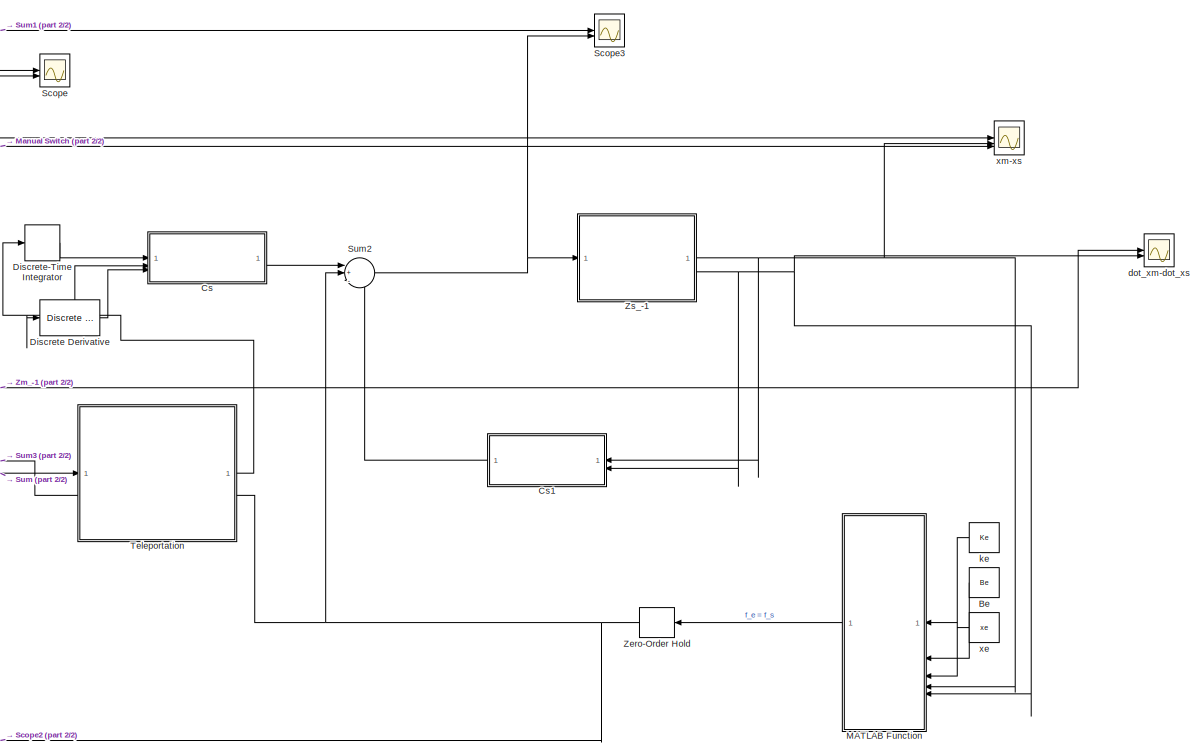
[diagram: root canvas - part 1/2, right side, full height]
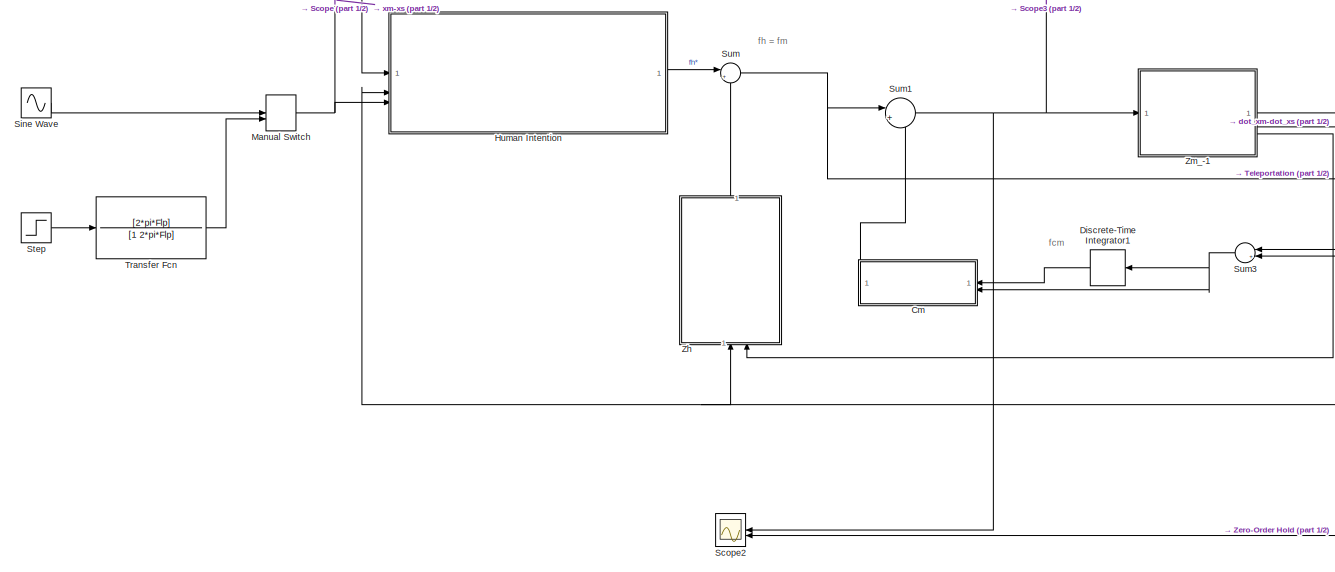
[diagram: root canvas - part 2/2, middle left region]
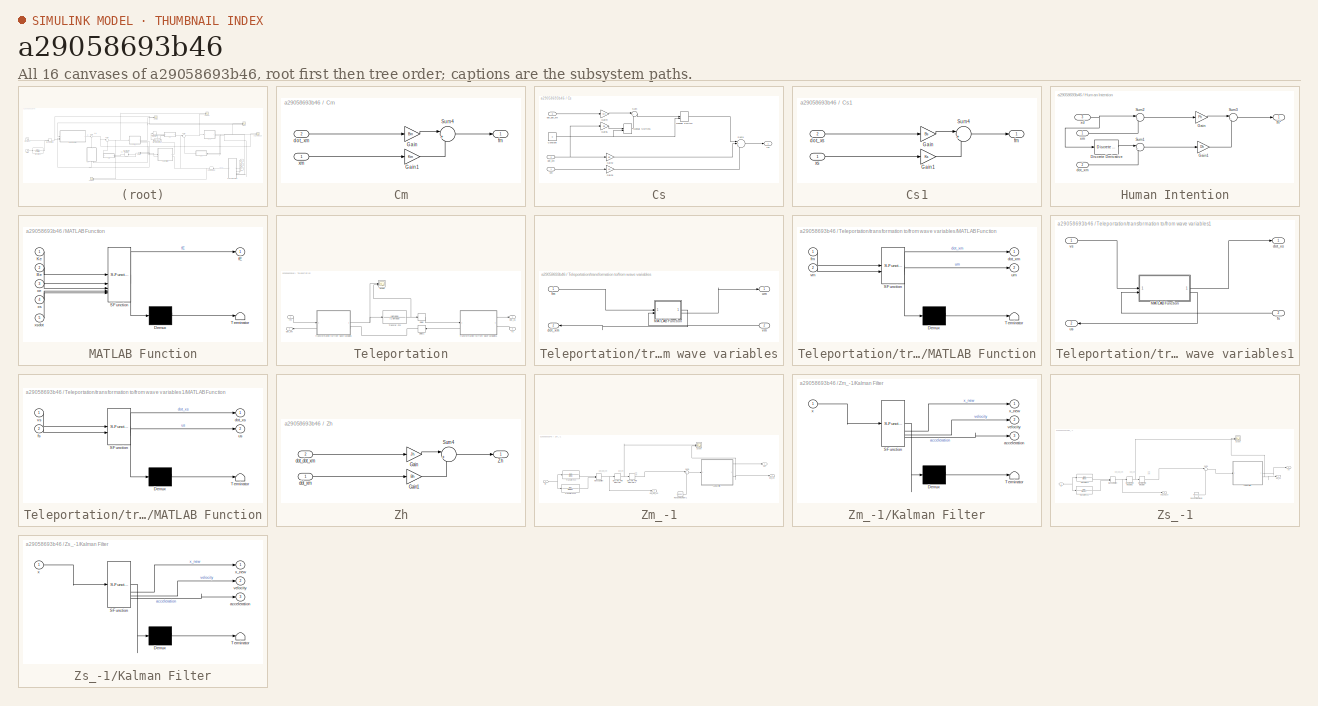
[diagram: thumbnail index - all 16 canvases of the model, root first then tree order]
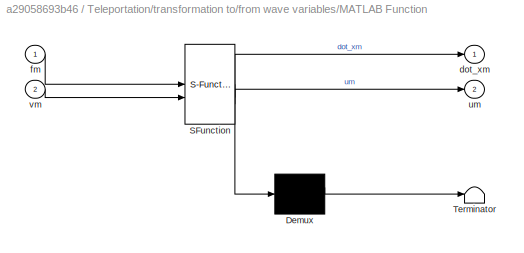
MODEL slx_a29058693b46
KIND model
CONFIG AbsTol = auto
CONFIG EnableMultiTasking = off
CONFIG FixedStep = auto
CONFIG MaxStep = auto
CONFIG MinStep = auto
CONFIG RelTol = 1e-9
CONFIG SampleTimeConstraint = Unconstrained
CONFIG SolverName = VariableStepAuto
CONFIG StartTime = 0.0
CONFIG StopTime = 10
BLOCK [Constant] Be
  Value = Be
BLOCK [SubSystem] Cm
BLOCK [Gain] Cm/Gain
  Gain = Bm
BLOCK [Gain] Cm/Gain1
  Gain = Km
BLOCK [Sum] Cm/Sum4
  Inputs = |++
BLOCK [Inport] Cm/dot_xm
  Port = 2
BLOCK [Outport] Cm/fm
BLOCK [Inport] Cm/xm
BLOCK [SubSystem] Cs
BLOCK [Constant] Cs/Constant
  Value = 0
BLOCK [Gain] Cs/Gain2
  Gain = Bs
BLOCK [Gain] Cs/Gain3
  Gain = Ks
BLOCK [Gain] Cs/Gain4
  Gain = Ms
BLOCK [Gain] Cs/Gain5
  Gain = Ds
BLOCK [ManualSwitch] Cs/Manual Switch
BLOCK [ManualSwitch] Cs/Manual Switch1
BLOCK [Sum] Cs/Sum
  Inputs = |++
BLOCK [Sum] Cs/Sum1
  Inputs = |+++
BLOCK [Inport] Cs/dot_dot_xm
  Port = 3
BLOCK [Inport] Cs/dot_xm
  Port = 2
BLOCK [Outport] Cs/fm
BLOCK [Inport] Cs/xm
BLOCK [SubSystem] Cs1
BLOCK [Gain] Cs1/Gain
  Gain = Bs
BLOCK [Gain] Cs1/Gain1
  Gain = Ks
BLOCK [Sum] Cs1/Sum4
  Inputs = |++
BLOCK [Inport] Cs1/dot_xs
  Port = 2
BLOCK [Outport] Cs1/fm
BLOCK [Inport] Cs1/xs
BLOCK [Reference] Discrete Derivative  REF=simulink/Discrete/Discrete Derivative
  SourceBlock = simulink/Discrete/Discrete Derivative
  SourceType = Discrete Derivative
BLOCK [DiscreteIntegrator] Discrete-Time Integrator
  ICPrevOutput = DiscIntNeverNeededParam
  ICPrevScaledInput = DiscIntNeverNeededParam
  InitialConditionSetting = Auto
  SampleTime = Ts
BLOCK [DiscreteIntegrator] Discrete-Time Integrator1
  ICPrevOutput = DiscIntNeverNeededParam
  ICPrevScaledInput = DiscIntNeverNeededParam
  InitialConditionSetting = Auto
  SampleTime = Ts
BLOCK [SubSystem] Human Intention
BLOCK [Reference] Human Intention/Discrete Derivative  REF=simulink/Discrete/Discrete Derivative
  SourceBlock = simulink/Discrete/Discrete Derivative
  SourceType = Discrete Derivative
BLOCK [Gain] Human Intention/Gain
  Gain = Ph
BLOCK [Gain] Human Intention/Gain1
  Gain = Dh
BLOCK [Sum] Human Intention/Sum1
  Inputs = |+-
BLOCK [Sum] Human Intention/Sum2
  Inputs = |+-
BLOCK [Sum] Human Intention/Sum3
  Inputs = |++
BLOCK [Inport] Human Intention/dot_xm
  Port = 2
BLOCK [Outport] Human Intention/fh*
BLOCK [Inport] Human Intention/xd
  Port = 3
BLOCK [Inport] Human Intention/xm
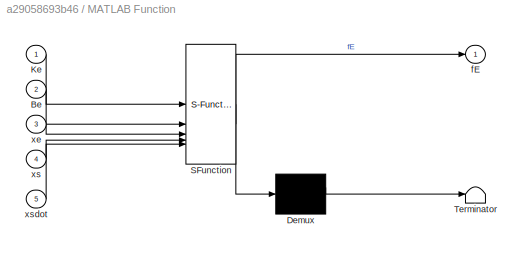
BLOCK [SubSystem] MATLAB Function
  ErrorFcn = Stateflow.Translate.translate
  PermitHierarchicalResolution = ExplicitOnly
  SFBlockType = MATLAB Function
  TreatAsAtomicUnit = on
BLOCK [Demux] MATLAB Function/ Demux 
  Outputs = 1
BLOCK [S-Function] MATLAB Function/ SFunction 
  EnableBusSupport = on
  FunctionName = sf_sfun
  PortCounts = [5 2]
  SFcnIsStateOwnerBlock = off
  SFunctionDeploymentMode = off
  Tag = Stateflow S-Function 2
BLOCK [Terminator] MATLAB Function/ Terminator 
BLOCK [Inport] MATLAB Function/Be
  Port = 2
BLOCK [Inport] MATLAB Function/Ke
BLOCK [Outport] MATLAB Function/fE
BLOCK [Inport] MATLAB Function/xe
  Port = 3
BLOCK [Inport] MATLAB Function/xs
  Port = 4
BLOCK [Inport] MATLAB Function/xsdot
  Port = 5
BLOCK [ManualSwitch] Manual Switch
BLOCK [Scope] Scope
  Floating = off
  NumInputPorts = 2
  ScopeSpecificationString = Simulink.scopes.TimeScopeBlockCfg('CurrentConfiguration', extmgr.ConfigurationSet(extmgr.Configuration('Core','General UI',true),extmgr.Configuration('Core','Source UI',true),extmgr.Configuration('Sources','WiredSimulink',true),extmgr.Configuration('Visuals','Time Domain',true,'SerializedDisplays',{struct('MinYLimReal','-33.14001','MaxYLimReal','31.45996','YLabelReal','','MinYLimMag','0.00000','Ma...<+1513ch>
BLOCK [Scope] Scope2
  Floating = off
  NumInputPorts = 2
  ScopeSpecificationString = Simulink.scopes.TimeScopeBlockCfg('CurrentConfiguration', extmgr.ConfigurationSet(extmgr.Configuration('Core','General UI',true),extmgr.Configuration('Core','Source UI',true),extmgr.Configuration('Sources','WiredSimulink',true,'DataLoggingVariableName','ScopeData2'),extmgr.Configuration('Visuals','Time Domain',true,'SerializedDisplays',{struct('MinYLimReal','-61.65474','MaxYLimReal','369.87901','Y...<+1556ch>
BLOCK [Scope] Scope3
  Floating = off
  NumInputPorts = 2
  ScopeSpecificationString = Simulink.scopes.TimeScopeBlockCfg('CurrentConfiguration', extmgr.ConfigurationSet(extmgr.Configuration('Core','General UI',true),extmgr.Configuration('Core','Source UI',true),extmgr.Configuration('Sources','WiredSimulink',true,'DataLoggingVariableName','ScopeData1'),extmgr.Configuration('Visuals','Time Domain',true,'SerializedDisplays',{struct('MinYLimReal','-20349.54623','MaxYLimReal','7846.10159...<+1574ch>
BLOCK [Sin] Sine Wave
  Amplitude = Amp
  Frequency = 2*pi*Fc
  SampleTime = 0
BLOCK [Step] Step
  After = Amp
  SampleTime = 0
  Time = 0.5
BLOCK [Sum] Sum
  Inputs = |+-
BLOCK [Sum] Sum1
  Inputs = |+-
BLOCK [Sum] Sum2
  Inputs = |+--
BLOCK [Sum] Sum3
  Inputs = |+-
BLOCK [SubSystem] Teleportation
  PortSchema = {"entries":[{"content":{"sides":[{"content":{"connectorIds":["In1","Out2"]},"type":"ConnectorPlacement.EquallySpacedRectSide","uuid":"b5f7abc7-c75d-4363-a17a-8f86c90608cd"},{"content":{"connectorIds":["Out1","In2"],"side":"RIGHT"},"type":"ConnectorPlacement.EquallySpacedRectSide","uuid":"2ed87bee-e320-4c73-a1d3-1960a55b558d"},{"content":{"connectorIds":[],"side":"TOP"},"type":"ConnectorPlacement.E...<+253ch>  <repeated x3 — deduplicated; at blocks: Teleportation, transformation to/from wave variables, transformation to/from wave variables1>
BLOCK [Delay] Teleportation/Delay
  DelayLength = delay
  InputPortMap = u0
  SampleTime = Ts
BLOCK [Delay] Teleportation/Delay1
  DelayLength = delay
  InputPortMap = u0
  SampleTime = Ts
BLOCK [Scope] Teleportation/Scope
  Floating = off
  NumInputPorts = 2
  ScopeSpecificationString = Simulink.scopes.TimeScopeBlockCfg('CurrentConfiguration', extmgr.ConfigurationSet(extmgr.Configuration('Core','General UI',true),extmgr.Configuration('Core','Source UI',true),extmgr.Configuration('Sources','WiredSimulink',true,'DataLoggingVariableName','ScopeData1'),extmgr.Configuration('Visuals','Time Domain',true,'SerializedDisplays',{struct('MinYLimReal','-281.77464','MaxYLimReal','359.76929','...<+1428ch>
BLOCK [TransferFcn] Teleportation/Transfer Fcn
  Denominator = [1 lambda]
  Numerator = [lambda]
BLOCK [Outport] Teleportation/dot_xm
  Port = 2
BLOCK [Outport] Teleportation/dot_xs
BLOCK [Inport] Teleportation/fm
BLOCK [Inport] Teleportation/fs
  Port = 2
BLOCK [SubSystem] Teleportation/transformation to//from wave variables
BLOCK [SubSystem] Teleportation/transformation to//from wave variables/MATLAB Function
  ErrorFcn = Stateflow.Translate.translate
  LibrarySourceBlock = simulink/User-Defined\nFunctions/MATLAB Function
  PermitHierarchicalResolution = ExplicitOnly
  SFBlockType = MATLAB Function
  TreatAsAtomicUnit = on
BLOCK [Demux] Teleportation/transformation to//from wave variables/MATLAB Function/ Demux 
  Outputs = 1
BLOCK [S-Function] Teleportation/transformation to//from wave variables/MATLAB Function/ SFunction 
  EnableBusSupport = on
  FunctionName = sf_sfun
  Parameters = b
  PortCounts = [2 3]
  SFcnIsStateOwnerBlock = off
  SFunctionDeploymentMode = off
  Tag = Stateflow S-Function 1
BLOCK [Terminator] Teleportation/transformation to//from wave variables/MATLAB Function/ Terminator 
BLOCK [Outport] Teleportation/transformation to//from wave variables/MATLAB Function/dot_xm
BLOCK [Inport] Teleportation/transformation to//from wave variables/MATLAB Function/fm
BLOCK [Outport] Teleportation/transformation to//from wave variables/MATLAB Function/um
  Port = 2
BLOCK [Inport] Teleportation/transformation to//from wave variables/MATLAB Function/vm
  Port = 2
BLOCK [Outport] Teleportation/transformation to//from wave variables/dot_xm
  Port = 2
BLOCK [Inport] Teleportation/transformation to//from wave variables/fm
BLOCK [Outport] Teleportation/transformation to//from wave variables/um
BLOCK [Inport] Teleportation/transformation to//from wave variables/vm
  Port = 2
BLOCK [SubSystem] Teleportation/transformation to//from wave variables1
BLOCK [SubSystem] Teleportation/transformation to//from wave variables1/MATLAB Function
  ErrorFcn = Stateflow.Translate.translate
  LibrarySourceBlock = simulink/User-Defined\nFunctions/MATLAB Function
  PermitHierarchicalResolution = ExplicitOnly
  SFBlockType = MATLAB Function
  TreatAsAtomicUnit = on
BLOCK [Demux] Teleportation/transformation to//from wave variables1/MATLAB Function/ Demux 
  Outputs = 1
BLOCK [S-Function] Teleportation/transformation to//from wave variables1/MATLAB Function/ SFunction 
  EnableBusSupport = on
  FunctionName = sf_sfun
  Parameters = b
  PortCounts = [2 3]
  SFcnIsStateOwnerBlock = off
  SFunctionDeploymentMode = off
  Tag = Stateflow S-Function 3
BLOCK [Terminator] Teleportation/transformation to//from wave variables1/MATLAB Function/ Terminator 
BLOCK [Outport] Teleportation/transformation to//from wave variables1/MATLAB Function/dot_xs
BLOCK [Inport] Teleportation/transformation to//from wave variables1/MATLAB Function/fs
  Port = 2
BLOCK [Outport] Teleportation/transformation to//from wave variables1/MATLAB Function/us
  Port = 2
BLOCK [Inport] Teleportation/transformation to//from wave variables1/MATLAB Function/vs
BLOCK [Outport] Teleportation/transformation to//from wave variables1/dot_xs
BLOCK [Inport] Teleportation/transformation to//from wave variables1/fs
  Port = 2
BLOCK [Outport] Teleportation/transformation to//from wave variables1/us
  Port = 2
BLOCK [Inport] Teleportation/transformation to//from wave variables1/vs
BLOCK [TransferFcn] Transfer Fcn
  Denominator = [1 2*pi*Flp]
  Numerator = [2*pi*Flp]
BLOCK [ZeroOrderHold] Zero-Order Hold
  SampleTime = Ts
BLOCK [SubSystem] Zh
  NameLocation = right
BLOCK [Gain] Zh/Gain
  Gain = Jh
BLOCK [Gain] Zh/Gain1
  Gain = Bh
BLOCK [Sum] Zh/Sum4
  Inputs = |++
BLOCK [Outport] Zh/Zh
BLOCK [Inport] Zh/dot_dot_xm
  Port = 2
BLOCK [Inport] Zh/dot_xm
BLOCK [SubSystem] Zm_-1
BLOCK [DiscreteIntegrator] Zm_-1/Discrete-Time Integrator
  ICPrevOutput = DiscIntNeverNeededParam
  ICPrevScaledInput = DiscIntNeverNeededParam
  InitialConditionSetting = Auto
  SampleTime = Ts
BLOCK [DiscreteIntegrator] Zm_-1/Discrete-Time Integrator1
  ICPrevOutput = DiscIntNeverNeededParam
  ICPrevScaledInput = DiscIntNeverNeededParam
  InitialConditionSetting = Auto
  SampleTime = Ts
BLOCK [SubSystem] Zm_-1/Kalman Filter
  ErrorFcn = Stateflow.Translate.translate
  LibrarySourceBlock = simulink/User-Defined\nFunctions/MATLAB Function
  PermitHierarchicalResolution = ExplicitOnly
  SFBlockType = MATLAB Function
  TreatAsAtomicUnit = on
BLOCK [Demux] Zm_-1/Kalman Filter/ Demux 
  Outputs = 1
BLOCK [S-Function] Zm_-1/Kalman Filter/ SFunction 
  EnableBusSupport = on
  FunctionName = sf_sfun
  Parameters = paramsKalman
  PortCounts = [1 4]
  SFcnIsStateOwnerBlock = off
  SFunctionDeploymentMode = off
  Tag = Stateflow S-Function 5
BLOCK [Terminator] Zm_-1/Kalman Filter/ Terminator 
BLOCK [Outport] Zm_-1/Kalman Filter/acceleration
  Port = 3
BLOCK [Outport] Zm_-1/Kalman Filter/velocity
  Port = 2
BLOCK [Inport] Zm_-1/Kalman Filter/x
BLOCK [Outport] Zm_-1/Kalman Filter/x_new
BLOCK [ManualSwitch] Zm_-1/Manual Switch
  CurrentSetting = 0
BLOCK [RandomNumber] Zm_-1/Random Number1
  SampleTime = Ts
  Variance = variance
BLOCK [Scope] Zm_-1/Scope
  Floating = off
  NumInputPorts = 2
  ScopeSpecificationString = Simulink.scopes.TimeScopeBlockCfg('CurrentConfiguration', extmgr.ConfigurationSet(extmgr.Configuration('Core','General UI',true),extmgr.Configuration('Core','Source UI',true),extmgr.Configuration('Sources','WiredSimulink',true,'DataLoggingVariableName','ScopeData2'),extmgr.Configuration('Visuals','Time Domain',true,'SerializedDisplays',{struct('MinYLimReal','-91.59779','MaxYLimReal','91.08304','YL...<+1488ch>
BLOCK [Sum] Zm_-1/Sum1
  Inputs = |++
BLOCK [TransferFcn] Zm_-1/Transfer Fcn
  Denominator = [Mm 0]
  Numerator = [1 0]
BLOCK [TransferFcn] Zm_-1/Transfer Fcn1
  Denominator = [Mm Dm]
  Numerator = [1 0]
BLOCK [Outport] Zm_-1/dot_dot_xm
  Port = 3
BLOCK [Outport] Zm_-1/dot_xm
  Port = 2
BLOCK [Inport] Zm_-1/fm
BLOCK [Outport] Zm_-1/xm
BLOCK [SubSystem] Zs_-1
BLOCK [DiscreteIntegrator] Zs_-1/Discrete-Time Integrator
  ICPrevOutput = DiscIntNeverNeededParam
  ICPrevScaledInput = DiscIntNeverNeededParam
  InitialConditionSetting = Auto
  SampleTime = Ts
BLOCK [DiscreteIntegrator] Zs_-1/Discrete-Time Integrator1
  ICPrevOutput = DiscIntNeverNeededParam
  ICPrevScaledInput = DiscIntNeverNeededParam
  InitialConditionSetting = Auto
  SampleTime = Ts
BLOCK [SubSystem] Zs_-1/Kalman Filter
  ErrorFcn = Stateflow.Translate.translate
  LibrarySourceBlock = simulink/User-Defined\nFunctions/MATLAB Function
  PermitHierarchicalResolution = ExplicitOnly
  SFBlockType = MATLAB Function
  TreatAsAtomicUnit = on
BLOCK [Demux] Zs_-1/Kalman Filter/ Demux 
  Outputs = 1
BLOCK [S-Function] Zs_-1/Kalman Filter/ SFunction 
  EnableBusSupport = on
  FunctionName = sf_sfun
  Parameters = paramsKalman
  PortCounts = [1 4]
  SFcnIsStateOwnerBlock = off
  SFunctionDeploymentMode = off
  Tag = Stateflow S-Function 4
BLOCK [Terminator] Zs_-1/Kalman Filter/ Terminator 
BLOCK [Outport] Zs_-1/Kalman Filter/acceleration
  Port = 3
BLOCK [Outport] Zs_-1/Kalman Filter/velocity
  Port = 2
BLOCK [Inport] Zs_-1/Kalman Filter/x
BLOCK [Outport] Zs_-1/Kalman Filter/x_new
BLOCK [ManualSwitch] Zs_-1/Manual Switch
  CurrentSetting = 0
BLOCK [RandomNumber] Zs_-1/Random Number1
  SampleTime = Ts
  Variance = variance
BLOCK [Scope] Zs_-1/Scope
  Floating = off
  NumInputPorts = 2
  ScopeSpecificationString = Simulink.scopes.TimeScopeBlockCfg('CurrentConfiguration', extmgr.ConfigurationSet(extmgr.Configuration('Core','General UI',true),extmgr.Configuration('Core','Source UI',true),extmgr.Configuration('Sources','WiredSimulink',true,'DataLoggingVariableName','ScopeData1'),extmgr.Configuration('Visuals','Time Domain',true,'SerializedDisplays',{struct('MinYLimReal','-97.16788','MaxYLimReal','96.45307','YL...<+1697ch>
BLOCK [Sum] Zs_-1/Sum1
  Inputs = |++
BLOCK [TransferFcn] Zs_-1/Transfer Fcn
  Denominator = [Ms 0]
  Numerator = [1 0]
BLOCK [TransferFcn] Zs_-1/Transfer Fcn1
  Denominator = [Ms Ds]
  Numerator = [1 0]
BLOCK [Outport] Zs_-1/dot_dot_xs
  Port = 3
BLOCK [Outport] Zs_-1/dot_xs
  Port = 2
BLOCK [Inport] Zs_-1/fs
BLOCK [Outport] Zs_-1/xs
BLOCK [Scope] dot_xm-dot_xs
  Floating = off
  NumInputPorts = 2
  ScopeSpecificationString = Simulink.scopes.TimeScopeBlockCfg('CurrentConfiguration', extmgr.ConfigurationSet(extmgr.Configuration('Core','General UI',true),extmgr.Configuration('Core','Source UI',true),extmgr.Configuration('Sources','WiredSimulink',true,'DataLoggingVariableName','ScopeData1'),extmgr.Configuration('Visuals','Time Domain',true,'SerializedDisplays',{struct('MinYLimReal','-91.04047','MaxYLimReal','93.82078','YL...<+1552ch>
BLOCK [Constant] ke
  Value = Ke
BLOCK [Constant] xe
  Value = xe
BLOCK [Scope] xm-xs
  Floating = off
  NumInputPorts = 3
  ScopeSpecificationString = Simulink.scopes.TimeScopeBlockCfg('CurrentConfiguration', extmgr.ConfigurationSet(extmgr.Configuration('Core','General UI',true),extmgr.Configuration('Core','Source UI',true),extmgr.Configuration('Sources','WiredSimulink',true,'DataLoggingVariableName','ScopeData1'),extmgr.Configuration('Visuals','Time Domain',true,'SerializedDisplays',{struct('MinYLimReal','-18.75','MaxYLimReal','18.75','YLabelRe...<+1665ch>
ANNOTATION (root): fcm
ANNOTATION (root): fh = fm
ANNOTATION Zm_-1: dot_dot_xm
ANNOTATION Zm_-1: dot_xm
ANNOTATION Zm_-1: xm xm
ANNOTATION Zs_-1: dot_dot_xm
ANNOTATION Zs_-1: dot_xm
ANNOTATION Zs_-1: xm xm
LINE Be:1 -> MATLAB Function:2
LINE Cm/Gain1:1 -> Cm/Sum4:2
LINE Cm/Gain:1 -> Cm/Sum4:1
LINE Cm/Sum4:1 -> Cm/fm:1
LINE Cm/dot_xm:1 -> Cm/Gain:1
LINE Cm/xm:1 -> Cm/Gain1:1
LINE Cm:1 -> Sum1:2
NET Cs/Constant:1 -> Cs/Manual Switch1:2, Cs/Manual Switch:2
LINE Cs/Gain2:1 -> Cs/Sum1:2
LINE Cs/Gain3:1 -> Cs/Sum1:3
LINE Cs/Gain4:1 -> Cs/Sum:1
LINE Cs/Gain5:1 -> Cs/Manual Switch1:1
LINE Cs/Manual Switch1:1 -> Cs/Sum:2
LINE Cs/Manual Switch:1 -> Cs/Sum1:1
LINE Cs/Sum1:1 -> Cs/fm:1
LINE Cs/Sum:1 -> Cs/Manual Switch:1
LINE Cs/dot_dot_xm:1 -> Cs/Gain4:1
NET Cs/dot_xm:1 -> Cs/Gain2:1, Cs/Gain5:1
LINE Cs/xm:1 -> Cs/Gain3:1
LINE Cs1/Gain1:1 -> Cs1/Sum4:2
LINE Cs1/Gain:1 -> Cs1/Sum4:1
LINE Cs1/Sum4:1 -> Cs1/fm:1
LINE Cs1/dot_xs:1 -> Cs1/Gain:1
LINE Cs1/xs:1 -> Cs1/Gain1:1
LINE Cs1:1 -> Sum2:3
LINE Cs:1 -> Sum2:1
LINE Discrete Derivative:1 -> Cs:3
LINE Discrete-Time Integrator1:1 -> Cm:1
LINE Discrete-Time Integrator:1 -> Cs:1
LINE Human Intention/Discrete Derivative:1 -> Human Intention/Sum1:1
LINE Human Intention/Gain1:1 -> Human Intention/Sum3:2
LINE Human Intention/Gain:1 -> Human Intention/Sum3:1
LINE Human Intention/Sum1:1 -> Human Intention/Gain1:1
LINE Human Intention/Sum2:1 -> Human Intention/Gain:1
LINE Human Intention/Sum3:1 -> Human Intention/fh*:1
LINE Human Intention/dot_xm:1 -> Human Intention/Sum1:2
NET Human Intention/xd:1 -> Human Intention/Discrete Derivative:1, Human Intention/Sum2:1
LINE Human Intention/xm:1 -> Human Intention/Sum2:2
LINE Human Intention:1 -> Sum:1
LINE MATLAB Function:1 -> Zero-Order Hold:1
NET Manual Switch:1 -> Human Intention:3, Scope:1, xm-xs:3
LINE Sine Wave:1 -> Manual Switch:1
LINE Step:1 -> Transfer Fcn:1
NET Sum1:1 -> Scope2:1, Scope3:1, Zm_-1:1
NET Sum2:1 -> Scope3:2, Zs_-1:1
NET Sum3:1 -> Cm:2, Discrete-Time Integrator1:1
NET Sum:1 -> Sum1:1, Teleportation:1
LINE Teleportation/Delay1:1 -> Teleportation/transformation to//from wave variables:2
LINE Teleportation/Delay:1 -> Teleportation/transformation to//from wave variables1:1
NET Teleportation/Transfer Fcn:1 -> Teleportation/Delay:1, Teleportation/Scope:2
LINE Teleportation/fm:1 -> Teleportation/transformation to//from wave variables:1
LINE Teleportation/fs:1 -> Teleportation/transformation to//from wave variables1:2
LINE Teleportation/transformation to//from wave variables/MATLAB Function:1 -> Teleportation/transformation to//from wave variables/dot_xm:1
LINE Teleportation/transformation to//from wave variables/MATLAB Function:2 -> Teleportation/transformation to//from wave variables/um:1
LINE Teleportation/transformation to//from wave variables/fm:1 -> Teleportation/transformation to//from wave variables/MATLAB Function:1
LINE Teleportation/transformation to//from wave variables/vm:1 -> Teleportation/transformation to//from wave variables/MATLAB Function:2
LINE Teleportation/transformation to//from wave variables1/MATLAB Function:1 -> Teleportation/transformation to//from wave variables1/dot_xs:1
LINE Teleportation/transformation to//from wave variables1/MATLAB Function:2 -> Teleportation/transformation to//from wave variables1/us:1
LINE Teleportation/transformation to//from wave variables1/fs:1 -> Teleportation/transformation to//from wave variables1/MATLAB Function:2
LINE Teleportation/transformation to//from wave variables1/vs:1 -> Teleportation/transformation to//from wave variables1/MATLAB Function:1
LINE Teleportation/transformation to//from wave variables1:1 -> Teleportation/dot_xs:1
LINE Teleportation/transformation to//from wave variables1:2 -> Teleportation/Delay1:1
NET Teleportation/transformation to//from wave variables:1 -> Teleportation/Scope:1, Teleportation/Transfer Fcn:1
LINE Teleportation/transformation to//from wave variables:2 -> Teleportation/dot_xm:1
NET Teleportation:1 -> Cs:2, Discrete Derivative:1, Discrete-Time Integrator:1
LINE Teleportation:2 -> Sum3:2
LINE Transfer Fcn:1 -> Manual Switch:2
NET Zero-Order Hold:1 -> Scope2:2, Sum2:2, Teleportation:2
LINE Zh/Gain1:1 -> Zh/Sum4:2
LINE Zh/Gain:1 -> Zh/Sum4:1
LINE Zh/Sum4:1 -> Zh/Zh:1
LINE Zh/dot_dot_xm:1 -> Zh/Gain:1
LINE Zh/dot_xm:1 -> Zh/Gain1:1
LINE Zh:1 -> Sum:2
LINE Zm_-1/Discrete-Time Integrator1:1 -> Zm_-1/Sum1:1
NET Zm_-1/Discrete-Time Integrator:1 -> Zm_-1/Discrete-Time Integrator1:1, Zm_-1/Scope:1
LINE Zm_-1/Kalman Filter:1 -> Zm_-1/xm:1
NET Zm_-1/Kalman Filter:2 -> Zm_-1/Scope:2, Zm_-1/dot_xm:1
NET Zm_-1/Manual Switch:1 -> Zm_-1/Discrete-Time Integrator:1, Zm_-1/dot_dot_xm:1
LINE Zm_-1/Random Number1:1 -> Zm_-1/Sum1:2
LINE Zm_-1/Sum1:1 -> Zm_-1/Kalman Filter:1
LINE Zm_-1/Transfer Fcn1:1 -> Zm_-1/Manual Switch:2
LINE Zm_-1/Transfer Fcn:1 -> Zm_-1/Manual Switch:1
NET Zm_-1/fm:1 -> Zm_-1/Transfer Fcn1:1, Zm_-1/Transfer Fcn:1
NET Zm_-1:1 -> Human Intention:1, Scope:2, xm-xs:1
NET Zm_-1:2 -> Human Intention:2, Sum3:1, Zh:1, dot_xm-dot_xs:1
LINE Zm_-1:3 -> Zh:2
NET Zs_-1/Discrete-Time Integrator1:1 -> Zs_-1/Discrete-Time Integrator:1, Zs_-1/Scope:2
LINE Zs_-1/Discrete-Time Integrator:1 -> Zs_-1/Sum1:1
LINE Zs_-1/Kalman Filter:1 -> Zs_-1/xs:1
NET Zs_-1/Kalman Filter:2 -> Zs_-1/Scope:1, Zs_-1/dot_xs:1
NET Zs_-1/Manual Switch:1 -> Zs_-1/Discrete-Time Integrator1:1, Zs_-1/dot_dot_xs:1
LINE Zs_-1/Random Number1:1 -> Zs_-1/Sum1:2
LINE Zs_-1/Sum1:1 -> Zs_-1/Kalman Filter:1
LINE Zs_-1/Transfer Fcn1:1 -> Zs_-1/Manual Switch:2
LINE Zs_-1/Transfer Fcn:1 -> Zs_-1/Manual Switch:1
NET Zs_-1/fs:1 -> Zs_-1/Transfer Fcn1:1, Zs_-1/Transfer Fcn:1
NET Zs_-1:1 -> Cs1:1, MATLAB Function:4, xm-xs:2
NET Zs_-1:2 -> Cs1:2, MATLAB Function:5, dot_xm-dot_xs:2
LINE ke:1 -> MATLAB Function:1
LINE xe:1 -> MATLAB Function:3
note: NET lines group one-source signal fan-out (src -> all destinations, sorted); 1:1 wires keep LINE
CHART Teleportation/transformation to//from wave variables/MATLAB Function states=1 transitions=1
  STATE_LABEL 'eML_blk_kernel()'
  STATE_LABEL 'SCRIPT:\nfunction [dot_xm, um] = fcn(fm, vm,b)\n    um = sqrt(2/b)*fm-vm;\n    dot_xm = (1/b)*(fm - sqrt(2*b)*vm);'
CHART MATLAB Function states=1 transitions=1
  STATE_LABEL 'eML_blk_kernel()'
  STATE_LABEL 'SCRIPT:\nfunction fE = environment(Ke, Be, xe, xs, xsdot)\n    if xs > xe\n        fE = Ke * (xs - xe) + Be * xsdot; % Plot both contributions Ke and Be\n    else\n        fE = 0;\n    end\nend\n'
CHART Teleportation/transformation to//from wave variables1/MATLAB Function states=1 transitions=1
  STATE_LABEL 'eML_blk_kernel()'
  STATE_LABEL 'SCRIPT:\nfunction [dot_xs, us]    = fcn(vs,fs,b)\n    us = sqrt(2/b)*fs - vs;\n    dot_xs = -(1/b)*(fs - sqrt(2*b)*vs);'
CHART Zs_-1/Kalman Filter states=1 transitions=1
  STATE_LABEL 'eML_blk_kernel()'
  STATE_LABEL "SCRIPT:\nfunction [x_new, velocity, acceleration] = Kalman(x, paramsKalman)\n    persistent x_k_x P_k_km1;\n\n    if(isempty(x_k_x))\n       x_k_x = [x;0;0];\n       P_k_km1 = paramsKalman.P*eye(3);\n\n    end\n\n\n    P_kp1_k = paramsKalman.A*P_k_km1*paramsKalman.A' - paramsKalman.A*P_k_km1*paramsKalman.C'*pinv(paramsKalman.C*P_k_km1*paramsKalman.C'+paramsKalman.R)*paramsKalman.C*P_k_km1*paramsKalman.A'+par...<+343ch>"
CHART Zm_-1/Kalman Filter states=1 transitions=1
  STATE_LABEL 'eML_blk_kernel()'
  STATE_LABEL "SCRIPT:\nfunction [x_new, velocity, acceleration] = Kalman(x, paramsKalman)\n    persistent x_k_x P_k_km1;\n\n    if(isempty(x_k_x))\n       x_k_x = [x;0;0];\n       P_k_km1 = paramsKalman.P*eye(3);\n\n    end\n\n\n    P_kp1_k = paramsKalman.A*P_k_km1*paramsKalman.A' - paramsKalman.A*P_k_km1*paramsKalman.C'*pinv(paramsKalman.C*P_k_km1*paramsKalman.C'+paramsKalman.R)*paramsKalman.C*P_k_km1*paramsKalman.A'+par...<+343ch>"
CHART  states=0 transitions=0
CHART  states=0 transitions=0
CHART  states=0 transitions=0
CHART  states=0 transitions=0
CHART  states=0 transitions=0
